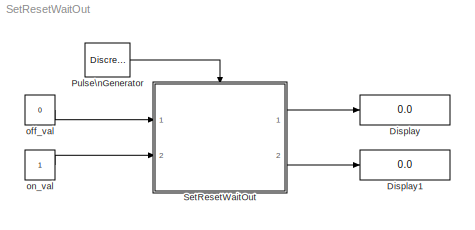
MODEL SetResetWaitOut
KIND model
CONFIG AbsTol = auto
CONFIG FixedStep = auto
CONFIG MaxStep = auto
CONFIG MinStep = auto
CONFIG RelTol = 1e-3
CONFIG Solver = ode45
CONFIG SolverMode = Auto
CONFIG StartTime = 0.0
CONFIG StopTime = 10.0
BLOCK [Display] Display
  Decimation = 1
  Ports = [1]
BLOCK [Display] Display1
  Decimation = 1
  Ports = [1]
BLOCK [DiscretePulseGenerator] Pulse\nGenerator
  PulseType = Time based
  PulseWidth = 50
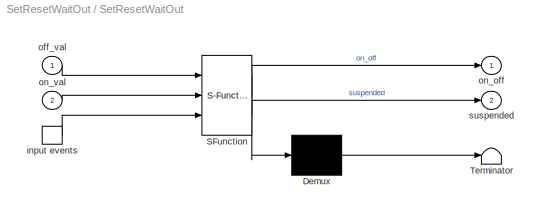
BLOCK [SubSystem] SetResetWaitOut
  MaskDescription = Stateflow diagram
  MaskDisplay = plot(sf('Private','sfblk','xIcon'),sf('Private','sfblk','yIcon'));text(0.5,0,sf('Private', 'sfblk', 'tIcon'),'HorizontalAl','Center','VerticalAl','Bottom');
  MaskIconFrame = off
  MaskIconOpaque = off
  MaskIconRotate = none
  MaskIconUnits = autoscale
  MaskSelfModifiable = on
  MaskType = Stateflow
  Ports = [2, 2, 0, 1]
  TreatAsAtomicUnit = off
BLOCK [Demux] SetResetWaitOut/ Demux 
  Outputs = 1
  Ports = [1, 1]
BLOCK [S-Function] SetResetWaitOut/ SFunction 
  FunctionName = sf_sfun
  PortCounts = [3 3]
  Ports = [3, 3]
  Tag = Stateflow S-Function SetResetWaitOut 1
BLOCK [Terminator] SetResetWaitOut/ Terminator 
BLOCK [TriggerPort] SetResetWaitOut/ input events 
  Ports = [0, 1]
  ShowOutputPort = on
  TriggerType = either
BLOCK [Inport] SetResetWaitOut/off_val
  PortDimensions = 1
BLOCK [Outport] SetResetWaitOut/on_off
BLOCK [Inport] SetResetWaitOut/on_val
  Port = 2
  PortDimensions = 1
BLOCK [Outport] SetResetWaitOut/suspended
  Port = 2
BLOCK [Constant] off_val
  Value = 0
BLOCK [Constant] on_val
LINE Pulse\nGenerator:1 -> SetResetWaitOut:trigger
LINE SetResetWaitOut/ Demux :1 -> SetResetWaitOut/ Terminator :1
LINE SetResetWaitOut/ SFunction :1 -> SetResetWaitOut/ Demux :1
LINE SetResetWaitOut/ SFunction :2 -> SetResetWaitOut/on_off:1
LINE SetResetWaitOut/ SFunction :3 -> SetResetWaitOut/suspended:1
LINE SetResetWaitOut/ input events :1 -> SetResetWaitOut/ SFunction :3
LINE SetResetWaitOut/off_val:1 -> SetResetWaitOut/ SFunction :1
LINE SetResetWaitOut/on_val:1 -> SetResetWaitOut/ SFunction :2
LINE SetResetWaitOut:1 -> Display:1
LINE SetResetWaitOut:2 -> Display1:1
LINE off_val:1 -> SetResetWaitOut:1
LINE on_val:1 -> SetResetWaitOut:2
CHART SetResetWaitOut states=3 transitions=6
  STATE_LABEL 'Wait/\\nen: suspended=1;\\nex: suspended=0;'
  STATE_LABEL 'Off/\\nen: on_off=0;'
  STATE_LABEL 'On/\\nen: on_off=1;'
